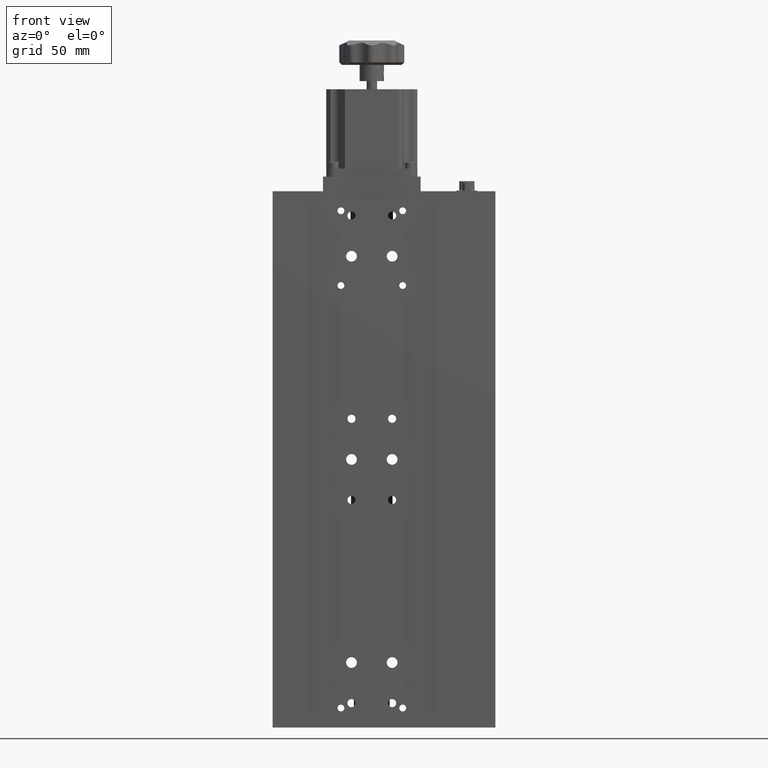
[diagram: clean part render]
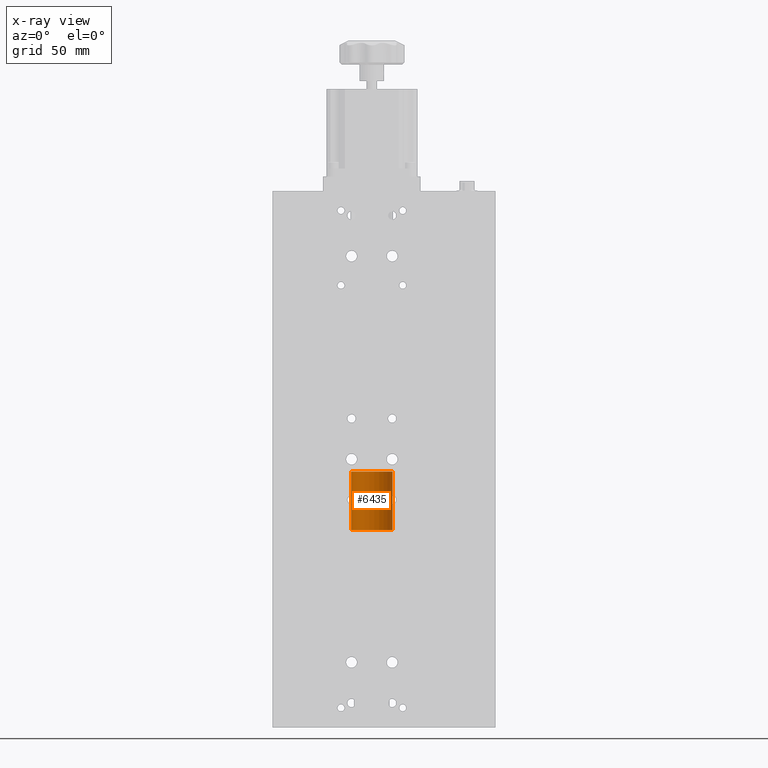
[diagram: x-ray — body ghosted, one internal face saturated and labeled with its STEP entity id]
A machine part, front view, then the same camera in x-ray: the body is ghosted and one INTERNAL B-rep face — a face not visible from any outside direction — is saturated and labeled: STEP entity #6435.
In plain terms, the highlighted cylindrical surface (edge-blend (fillet) strip) has radius 12.75 mm, axis along (0, 0, 1).
Its self-contained STEP definition (entity closure, byte-faithful):
#1671 = DIRECTION ( 'NONE',  ( -1.000000000000000000, 0.0000000000000000000, 0.0000000000000000000 ) ) ;
#2630 = EDGE_LOOP ( 'NONE', ( #8196, #34350, #15307, #11290 ) ) ;
#2876 = CYLINDRICAL_SURFACE ( 'NONE', #22875, 12.75000000000003600 ) ;
#6057 = AXIS2_PLACEMENT_3D ( 'NONE', #34127, #14511, #37442 ) ;
#6435 = ADVANCED_FACE ( 'NONE', ( #23311 ), #2876, .F. ) ;
#6728 = VECTOR ( 'NONE', #11596, 1000.000000000000000 ) ;
#8196 = ORIENTED_EDGE ( 'NONE', *, *, #12142, .F. ) ;
#8364 = CARTESIAN_POINT ( 'NONE',  ( 2.469883298925530800, 20.89557601279238600, -106.2607007065122100 ) ) ;
#10614 = CARTESIAN_POINT ( 'NONE',  ( -10.28011670107446700, 20.89557601279239000, -70.26070070651211100 ) ) ;
#10998 = EDGE_CURVE ( 'NONE', #24627, #29636, #31813, .T. ) ;
#11290 = ORIENTED_EDGE ( 'NONE', *, *, #17718, .F. ) ;
#11489 = CARTESIAN_POINT ( 'NONE',  ( -23.03011670107450500, 20.89557601279238600, -106.2607007065122100 ) ) ;
#11596 = DIRECTION ( 'NONE',  ( 1.936098308761039700E-032, 2.192866807852197900E-016, 1.000000000000000000 ) ) ;
#12142 = EDGE_CURVE ( 'NONE', #13931, #41241, #18855, .T. ) ;
#13623 = VECTOR ( 'NONE', #20355, 1000.000000000000000 ) ;
#13892 = DIRECTION ( 'NONE',  ( -1.000000000000000000, 0.0000000000000000000, 0.0000000000000000000 ) ) ;
#13931 = VERTEX_POINT ( 'NONE', #8364 ) ;
#14511 = DIRECTION ( 'NONE',  ( 1.936098308761039700E-032, 2.192866807852197900E-016, 1.000000000000000000 ) ) ;
#14722 = CARTESIAN_POINT ( 'NONE',  ( -23.03011670107450500, 20.89557601279238600, -106.2607007065122100 ) ) ;
#15307 = ORIENTED_EDGE ( 'NONE', *, *, #10998, .T. ) ;
#15449 = LINE ( 'NONE', #14722, #6728 ) ;
#17718 = EDGE_CURVE ( 'NONE', #41241, #29636, #15449, .T. ) ;
#17811 = DIRECTION ( 'NONE',  ( 1.936098308761039700E-032, 2.192866807852197900E-016, 1.000000000000000000 ) ) ;
#18855 = CIRCLE ( 'NONE', #6057, 12.75000000000003600 ) ;
#20355 = DIRECTION ( 'NONE',  ( 1.936098308761039700E-032, 2.192866807852197900E-016, 1.000000000000000000 ) ) ;
#22875 = AXIS2_PLACEMENT_3D ( 'NONE', #30995, #17811, #1671 ) ;
#23311 = FACE_OUTER_BOUND ( 'NONE', #2630, .T. ) ;
#24627 = VERTEX_POINT ( 'NONE', #39823 ) ;
#29636 = VERTEX_POINT ( 'NONE', #40875 ) ;
#30131 = AXIS2_PLACEMENT_3D ( 'NONE', #10614, #33525, #13892 ) ;
#30995 = CARTESIAN_POINT ( 'NONE',  ( -10.28011670107446700, 20.89557601279238600, -106.2607007065122100 ) ) ;
#31813 = CIRCLE ( 'NONE', #30131, 12.75000000000003600 ) ;
#33424 = EDGE_CURVE ( 'NONE', #13931, #24627, #39768, .T. ) ;
#33525 = DIRECTION ( 'NONE',  ( 1.936098308761039700E-032, 2.192866807852197900E-016, 1.000000000000000000 ) ) ;
#34127 = CARTESIAN_POINT ( 'NONE',  ( -10.28011670107446700, 20.89557601279238600, -106.2607007065122100 ) ) ;
#34350 = ORIENTED_EDGE ( 'NONE', *, *, #33424, .T. ) ;
#37442 = DIRECTION ( 'NONE',  ( -1.000000000000000000, 0.0000000000000000000, 0.0000000000000000000 ) ) ;
#39768 = LINE ( 'NONE', #40013, #13623 ) ;
#39823 = CARTESIAN_POINT ( 'NONE',  ( 2.469883298925530800, 20.89557601279238600, -70.26070070651211100 ) ) ;
#40013 = CARTESIAN_POINT ( 'NONE',  ( 2.469883298925567200, 20.89557601279238600, -106.2607007065122100 ) ) ;
#40875 = CARTESIAN_POINT ( 'NONE',  ( -23.03011670107450500, 20.89557601279239000, -70.26070070651211100 ) ) ;
#41241 = VERTEX_POINT ( 'NONE', #11489 ) ;